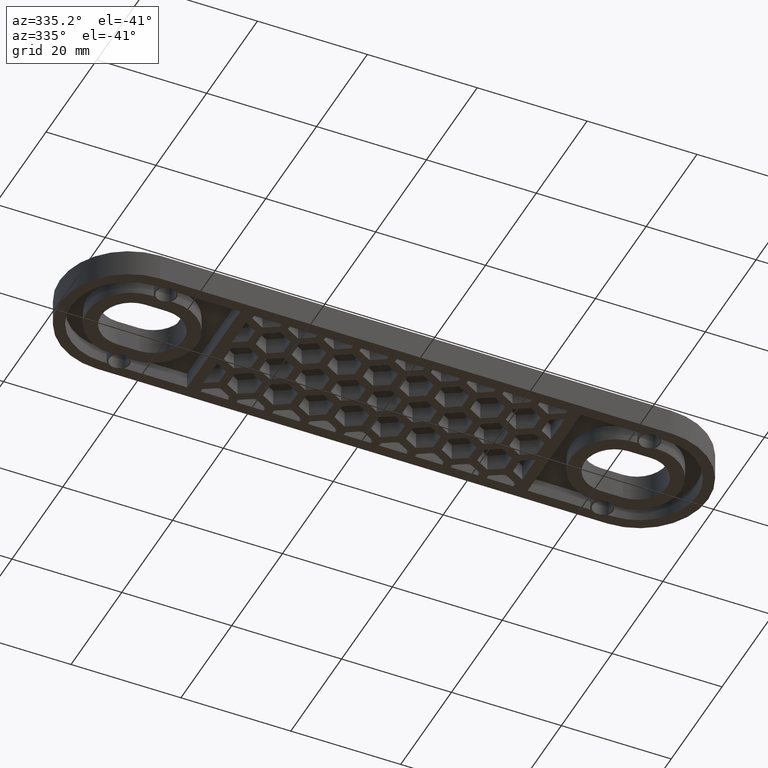
[diagram: clean part render]
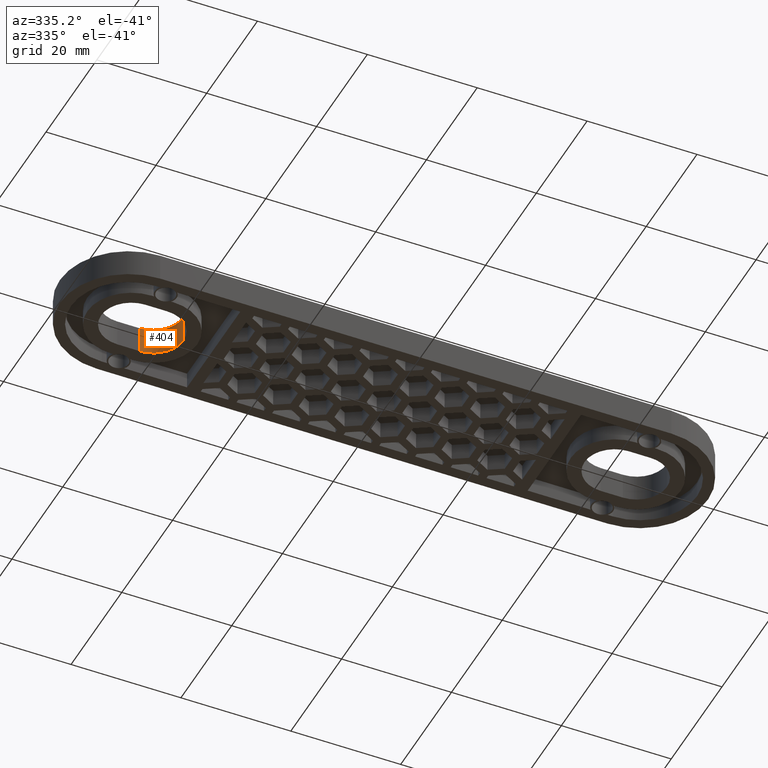
[diagram: same view with one face highlighted and labeled with its STEP entity id]
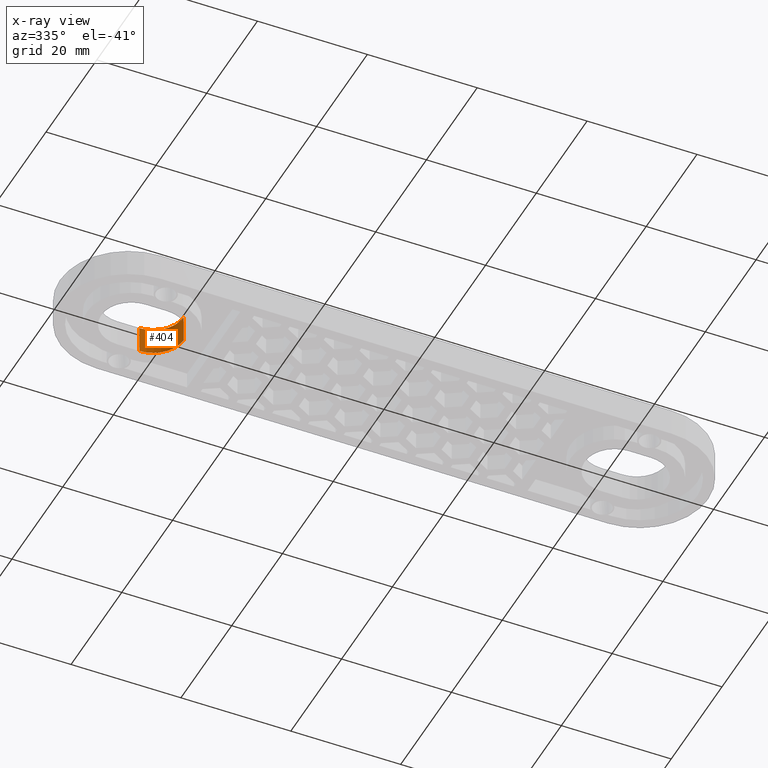
[diagram: x-ray of the same camera — body ghosted, the highlighted face saturated]
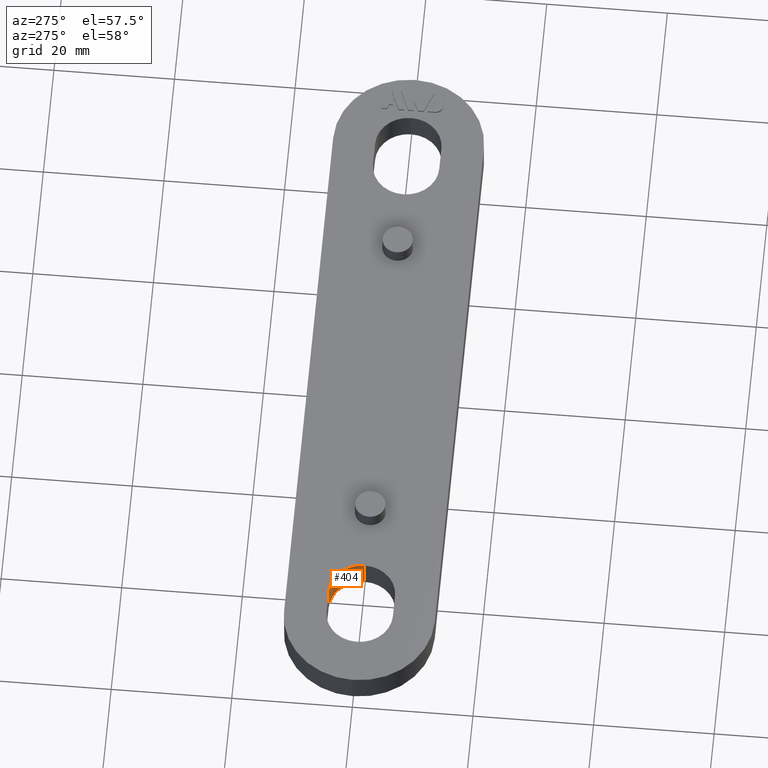
[diagram: same view with one face highlighted and labeled with its STEP entity id]
A machine part, auxiliary view. The second image highlights one B-rep face of the part: STEP entity #404.
The next image is the same camera in x-ray: the body ghosted, the highlighted face saturated — about 0% of this face is hidden behind the body in this view.
A second angle (auxiliary view) of the same face is appended — the face is thin or edge-on in the first view.
In plain terms, the highlighted cylindrical surface (edge-blend (fillet) strip) has radius 5.5 mm, axis along (0, -0, -1).
Its self-contained STEP definition (entity closure, byte-faithful):
#404 = ADVANCED_FACE( '', ( #1215 ), #1216, .F. );
#1215 = FACE_OUTER_BOUND( '', #2107, .T. );
#1216 = CYLINDRICAL_SURFACE( '', #2108, 5.49999999999999 );
#2107 = EDGE_LOOP( '', ( #4929, #4930, #4931, #4932 ) );
#2108 = AXIS2_PLACEMENT_3D( '', #4933, #4934, #4935 );
#4929 = ORIENTED_EDGE( '', *, *, #6552, .T. );
#4930 = ORIENTED_EDGE( '', *, *, #5575, .T. );
#4931 = ORIENTED_EDGE( '', *, *, #6556, .F. );
#4932 = ORIENTED_EDGE( '', *, *, #5950, .F. );
#4933 = CARTESIAN_POINT( '', ( -42.0000000000000, 6.93889329159763E-015, -1.00001047997900E-005 ) );
#4934 = DIRECTION( '', ( 0.000000000000000, -6.12303176911189E-017, -1.00000000000000 ) );
#4935 = DIRECTION( '', ( -1.15648231731787E-016, 1.00000000000000, -6.12303176911189E-017 ) );
#5575 = EDGE_CURVE( '', #6618, #6619, #6620, .T. );
#5950 = EDGE_CURVE( '', #7356, #7358, #7359, .T. );
#6552 = EDGE_CURVE( '', #7356, #6618, #8268, .T. );
#6556 = EDGE_CURVE( '', #7358, #6619, #8272, .T. );
#6618 = VERTEX_POINT( '', #8353 );
#6619 = VERTEX_POINT( '', #8354 );
#6620 = CIRCLE( '', #8355, 5.50000000000000 );
#7356 = VERTEX_POINT( '', #9412 );
#7358 = VERTEX_POINT( '', #9414 );
#7359 = CIRCLE( '', #9415, 5.50000000000000 );
#8268 = LINE( '', #10906, #10907 );
#8272 = LINE( '', #10914, #10915 );
#8353 = CARTESIAN_POINT( '', ( -36.5000000000000, 1.17351344890750E-015, 5.00000200004675 ) );
#8354 = CARTESIAN_POINT( '', ( -42.0000000000000, 5.50000000000000, 5.00000200004675 ) );
#8355 = AXIS2_PLACEMENT_3D( '', #11007, #11008, #11009 );
#9412 = CARTESIAN_POINT( '', ( -36.5000000000000, 8.05281902720052E-015, -1.38777878078145E-014 ) );
#9414 = CARTESIAN_POINT( '', ( -42.0000000000000, 5.50000000000000, -1.42145545551156E-014 ) );
#9415 = AXIS2_PLACEMENT_3D( '', #11490, #11491, #11492 );
#10906 = CARTESIAN_POINT( '', ( -36.5000000000000, 9.54097850556285E-015, -1.00001047997900E-005 ) );
#10907 = VECTOR( '', #12132, 1000.00000000000 );
#10914 = CARTESIAN_POINT( '', ( -42.0000000000000, 5.50000000000000, -1.00001048001267E-005 ) );
#10915 = VECTOR( '', #12136, 1000.00000000000 );
#11007 = CARTESIAN_POINT( '', ( -42.0000000000000, -1.42857176505771E-015, 5.00000200004675 ) );
#11008 = DIRECTION( '', ( 0.000000000000000, 6.12303176911189E-017, 1.00000000000000 ) );
#11009 = DIRECTION( '', ( 1.15648231731787E-016, -1.00000000000000, 6.12303176911189E-017 ) );
#11490 = CARTESIAN_POINT( '', ( -42.0000000000000, 6.93889390390723E-015, -1.38777878078145E-014 ) );
#11491 = DIRECTION( '', ( 0.000000000000000, 6.12303176911189E-017, 1.00000000000000 ) );
#11492 = DIRECTION( '', ( 0.000000000000000, -1.00000000000000, 6.12303176911189E-017 ) );
#12132 = DIRECTION( '', ( 0.000000000000000, 6.12303176911189E-017, 1.00000000000000 ) );
#12136 = DIRECTION( '', ( 0.000000000000000, 6.12303176911189E-017, 1.00000000000000 ) );